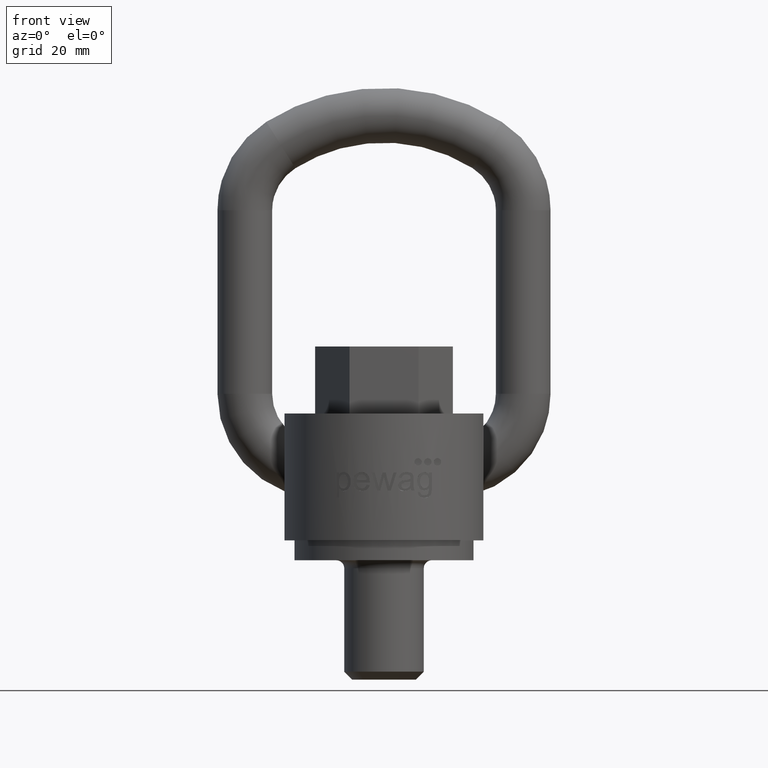
[diagram: clean part render]
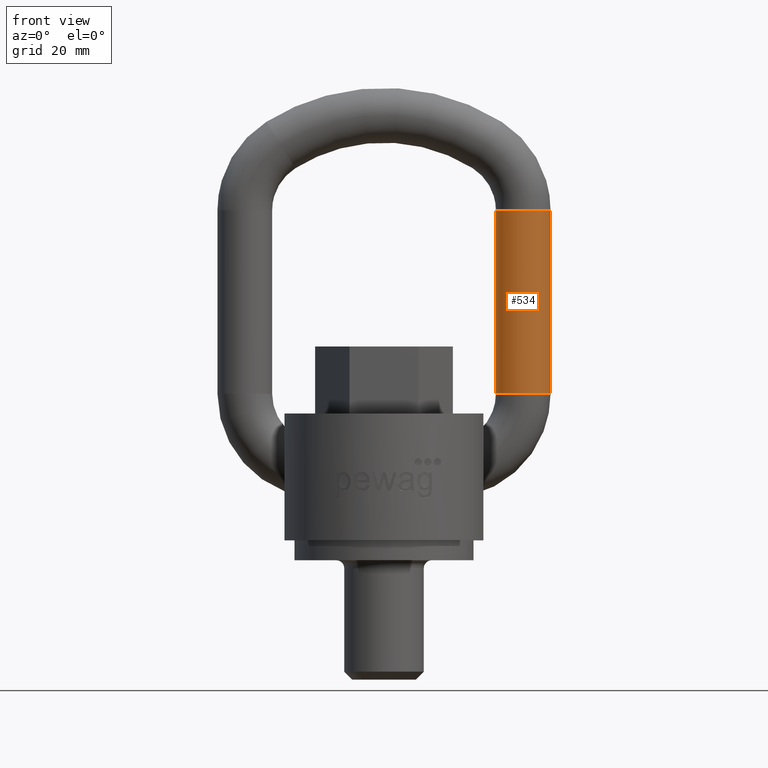
[diagram: same view with one face highlighted and labeled with its STEP entity id]
A machine part, front view. The second image highlights one B-rep face of the part: STEP entity #534.
In plain terms, the highlighted cylindrical surface (bore or boss wall) has radius 5.5 mm, axis along (0, 0, -1).
Its self-contained STEP definition (entity closure, byte-faithful):
#534=ADVANCED_FACE('',(#623,#624),#552,.T.);
#552=CYLINDRICAL_SURFACE('',#2549,5.5);
#623=FACE_BOUND('',#785,.T.);
#624=FACE_BOUND('',#786,.T.);
#785=EDGE_LOOP('',(#1726));
#786=EDGE_LOOP('',(#1727));
#1113=CIRCLE('',#2535,5.5);
#1119=CIRCLE('',#2547,5.5);
#1726=ORIENTED_EDGE('',*,*,#2241,.F.);
#1727=ORIENTED_EDGE('',*,*,#2235,.T.);
#1931=VERTEX_POINT('',#5181);
#1937=VERTEX_POINT('',#5199);
#2235=EDGE_CURVE('',#1931,#1931,#1113,.T.);
#2241=EDGE_CURVE('',#1937,#1937,#1119,.T.);
#2535=AXIS2_PLACEMENT_3D('',#5180,#2959,#2960);
#2547=AXIS2_PLACEMENT_3D('',#5198,#2983,#2984);
#2549=AXIS2_PLACEMENT_3D('',#5201,#2987,#2988);
#2959=DIRECTION('',(6.77576192227313E-16,0.,1.));
#2960=DIRECTION('',(1.,0.,-6.30808536718839E-16));
#2983=DIRECTION('',(6.77576192227313E-16,0.,1.));
#2984=DIRECTION('',(1.,0.,0.));
#2987=DIRECTION('',(9.62801590771806E-17,0.,-1.));
#2988=DIRECTION('',(-1.,0.,0.));
#5180=CARTESIAN_POINT('',(28.,19.,29.5));
#5181=CARTESIAN_POINT('',(33.5,19.,29.5));
#5198=CARTESIAN_POINT('',(28.,19.,66.3997487421324));
#5199=CARTESIAN_POINT('',(33.5,19.,66.3997487421324));
#5201=CARTESIAN_POINT('',(28.,19.,66.3997487421324));